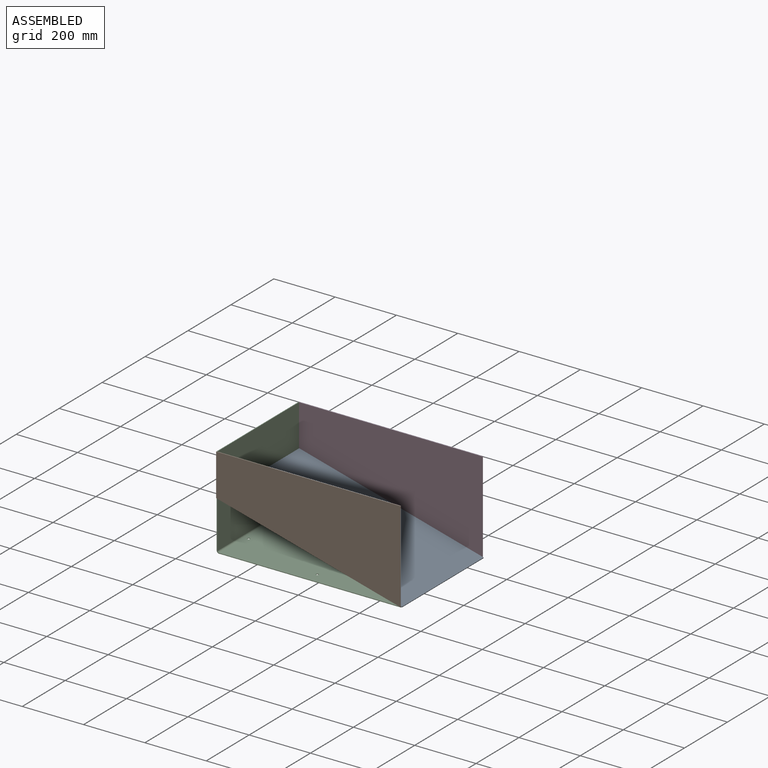
[diagram: assembled view]
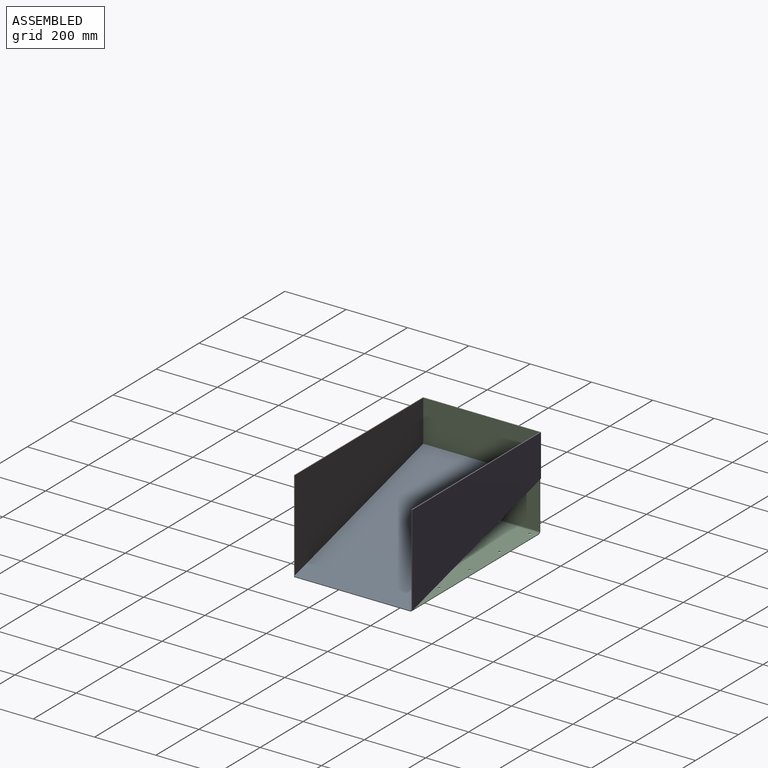
[diagram: assembled view, second angle]
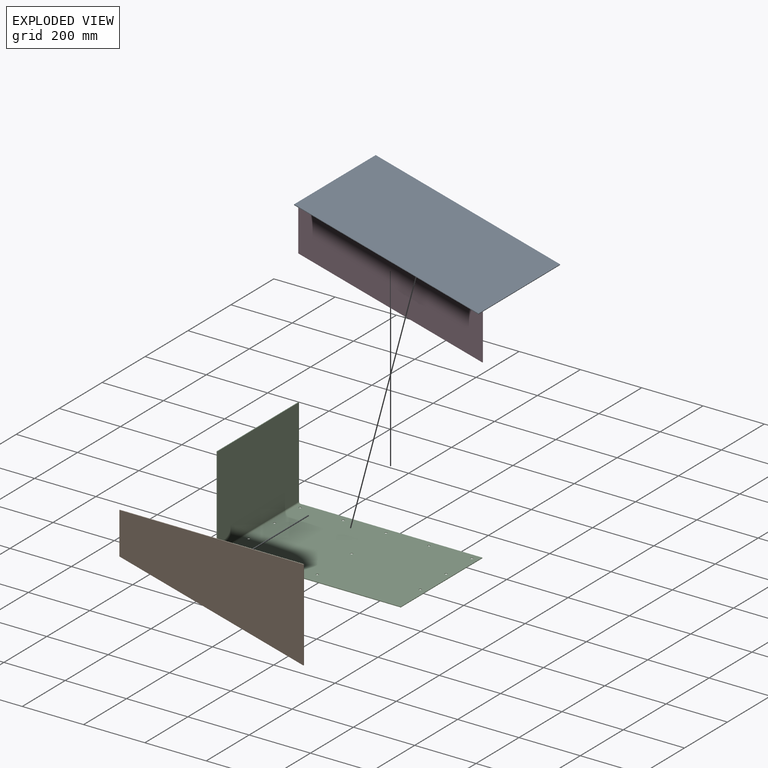
[diagram: exploded view]
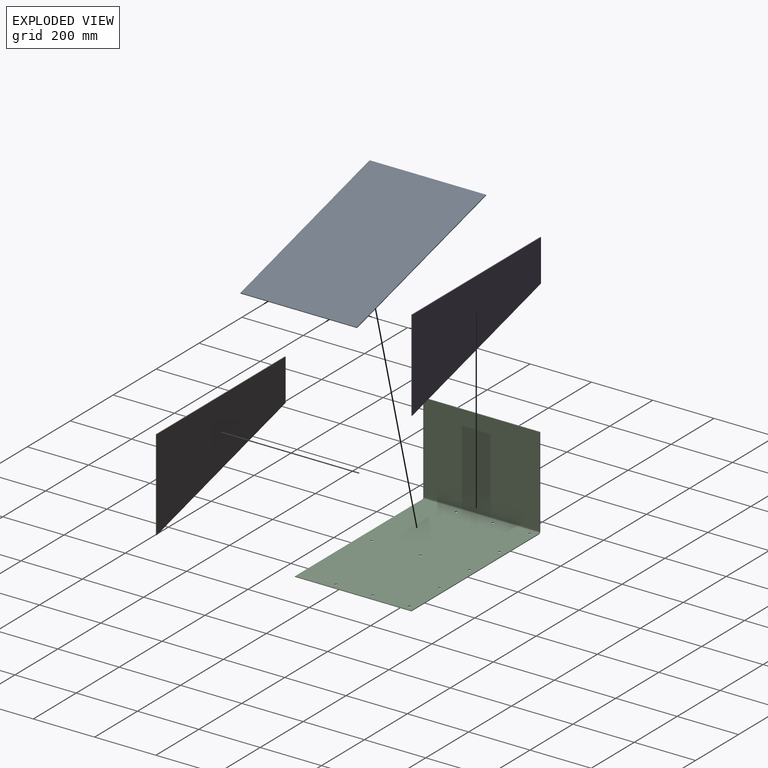
[diagram: exploded view, second angle]
ASSEMBLY  parts=4 mates=8
PART A: 6 faces, bbox 602.4x380x163.7 mm
  f0: plane 380x2.42mm, normal (-0.97,0,0.26), area 950mm2, adj f1,f3,f4,f5
  f1: plane 601.77x380mm, normal (-0.26,0,-0.97), area 236740mm2, adj f0,f2,f4,f5
  f2: plane 380x2.42mm, normal (0.97,0,-0.26), area 950mm2, adj f1,f3,f4,f5
  f3: plane 601.77x380mm, normal (0.26,0,0.97), area 236740mm2, adj f0,f2,f4,f5
  f4: plane 602.42x163.66mm, normal (0,1,0), area 1557.5mm2, adj f0,f1,f2,f3
  f5: plane 602.42x163.66mm, normal (0,-1,0), area 1557.5mm2, adj f0,f1,f2,f3
PART B: 6 faces, bbox 600.5x2.5x297.8 mm
  f0: plane 600.5x2.5mm, normal (0,0,1), area 1501.3mm2, adj f1,f3,f4,f5
  f1: plane 136.9x2.5mm, normal (-1,0,0), area 342.2mm2, adj f0,f2,f4,f5
  f2: plane 600.5x160.9mm, normal (-0.26,0,-0.97), area 1554.2mm2, adj f1,f3,f4,f5
  f3: plane 297.8x2.5mm, normal (1,0,0), area 744.5mm2, adj f0,f2,f4,f5
  f4: plane 600.5x297.8mm, normal (0,-1,0), area 130519.7mm2, adj f0,f1,f2,f3
  f5: plane 600.5x297.8mm, normal (0,1,0), area 130519.7mm2, adj f0,f1,f2,f3
PART C: 21 faces, bbox 600.5x380x300 mm
  f0: plane 600.5x300mm, normal (0,1,0), area 1939.3mm2, adj f1,f2,f4,f5,f6,f7,f8,f9
  f1: plane 380x2mm, normal (1,0,0), area 760mm2, adj f0,f3,f5,f7
  f2: plane 380x292.5mm, normal (-1,0,0), area 111150mm2, adj f0,f3,f4,f9
  f3: plane 600.5x300mm, normal (0,-1,0), area 1939.3mm2, adj f1,f2,f4,f5,f6,f7,f8,f9
  f4: plane 380x2.5mm, normal (0,0,1), area 950mm2, adj f0,f2,f3,f6
  f5: plane 593x380mm, normal (0,0,-1), area 224787.1mm2, adj f0,f1,f3,f9,f10,f11,f12,f13
  f6: plane 380x293mm, normal (1,0,0), area 111340mm2, adj f0,f3,f4,f8
  f7: plane 593x380mm, normal (0,0,1), area 224787.1mm2, adj f0,f1,f3,f8,f10,f11,f12,f13
  f8: cylinder r=5mm len=380mm, axis (0,-1,0), area 2984.5mm2, adj f0,f3,f6,f7
  f9: cylinder r=7.5mm len=380mm, axis (0,-1,0), area 4476.8mm2, adj f0,f2,f3,f5
  f10: cylinder r=4mm len=8mm, axis (0,0,1), area 50.3mm2, adj f5,f7
  f11: cylinder r=4mm len=8mm, axis (0,0,1), area 50.3mm2, adj f5,f7
  f12: cylinder r=4mm len=8mm, axis (0,0,1), area 50.3mm2, adj f5,f7
  f13: cylinder r=4mm len=8mm, axis (0,0,1), area 50.3mm2, adj f5,f7
  f14: cylinder r=4mm len=8mm, axis (0,0,1), area 50.3mm2, adj f5,f7
  f15: cylinder r=4mm len=8mm, axis (0,0,1), area 50.3mm2, adj f5,f7
  f16: cylinder r=4mm len=8mm, axis (0,0,1), area 50.3mm2, adj f5,f7
  f17: cylinder r=4mm len=8mm, axis (0,0,1), area 50.3mm2, adj f5,f7
  f18: cylinder r=4mm len=8mm, axis (0,0,1), area 50.3mm2, adj f5,f7
  f19: cylinder r=4mm len=8mm, axis (0,0,1), area 50.3mm2, adj f5,f7
  f20: cylinder r=4mm len=8mm, axis (0,0,1), area 50.3mm2, adj f5,f7
PART D: same geometry as B
PLACE A rot(axis=(0,-1,0),0deg) t=(937.06,272.06,170.96)mm
PLACE B rot(axis=(0,1,0),0deg) t=(1180.62,272.06,204.25)mm
PLACE C t=(1277.05,462.77,37.71)mm
PLACE D rot(axis=(0,1,0),0deg) t=(1180.62,654.56,204.25)mm
MATE planar D.f2 <-> A.f1  axis (-0.26,0,-0.97) through (1183.82,653.31,120.16)mm
MATE planar B.f5 <-> A.f5  axis (0,1,0) through (1220.86,272.06,223.88)mm
MATE planar D.f1 <-> C.f2  axis (-1,0,0) through (883.57,653.31,269.07)mm
MATE parallel A.f5 <-> C.f3  axis (0,-1,0) through (1187.28,272.06,120.53)mm
MATE planar D.f4 <-> A.f4  axis (0,-1,0) through (883.57,652.06,200.62)mm
MATE planar B.f1 <-> C.f2  axis (-1,0,0) through (883.57,270.81,269.07)mm
MATE planar B.f2 <-> A.f1  axis (-0.26,0,-0.97) through (1183.82,270.81,120.16)mm
MATE planar C.f3 <-> A.f5  axis (0,-1,0) through (1069.99,272.06,96.34)mm
